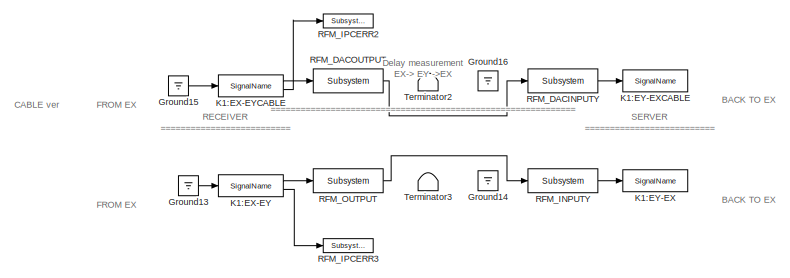
[diagram: root canvas - part 1/2, top center region]
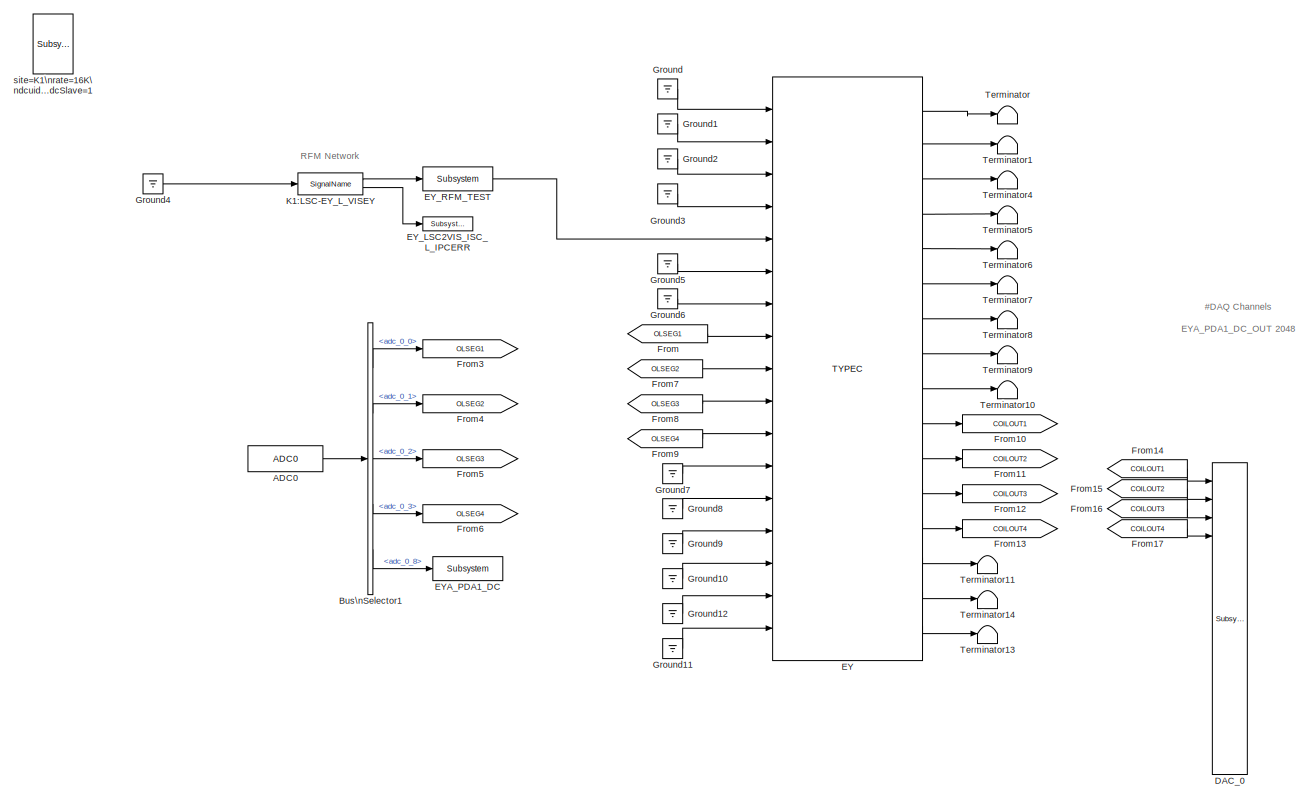
[diagram: root canvas - part 2/2, full width, middle band]
MODEL k1visey
KIND model
BLOCK [Reference] ADC0  REF=cdsAdcx0/ADC0
  AttributesFormatString = %<Description>\\n%<Tag>
  Description = type-GSC_16AI64SSA\ncard_num=0
  Ports = [0, 1]
  SID = 51
  SourceBlock = cdsAdcx0/ADC0
  SourceType = SubSystem
  Tag = cdsAdc
BLOCK [BusSelector] Bus\nSelector1
  AttributesFormatString = %<Description>
  Description = ADC Selector
  OutputSignals = adc_0_0,adc_0_1,adc_0_2,adc_0_3,adc_0_8
  Ports = [1, 5]
  SID = 52
BLOCK [Reference] DAC_0  REF=dac/Subsystem  (lib defined in slx_40ef132df75b, slx_b7657ccccc5b, +4 more)
  AttributesFormatString = %<Description>
  Description = type=GSC_16AO16,\ncard_num=0
  Ports = [16]
  SID = 5
  SourceBlock = dac/Subsystem
  SourceType = SubSystem
BLOCK [Reference] EY  REF=TYPEC_MASTER/TYPEC
  AttributesFormatString = %<Description>
  Description = TYPEC MASTER
  Ports = [17, 16]
  SID = 19
  SourceBlock = TYPEC_MASTER/TYPEC
  SourceType = SubSystem
BLOCK [Reference] EYA_PDA1_DC  REF=cdsFilt/Subsystem
  AttributesFormatString = %<Tag>
  Description = Purpose:                                                                                                                                                                                                                                  \nStandard CDS IIR filter module.                                                                                                                                     ...<+1302ch>  <repeated x6 — deduplicated; at blocks: EYA_PDA1_DC, EY_RFM_TEST, RFM_DACINPUTY, RFM_DACOUTPUT, RFM_INPUTY, RFM_OUTPUT>
  Ports = [1, 1]
  SID = 53
  SourceBlock = cdsFilt/Subsystem
  SourceType = SubSystem
  Tag = cdsFilt
BLOCK [Reference] EY_LSC2VIS_ISC_L_IPCERR  REF=cdsEpicsOut/Subsystem
  AttributesFormatString = %<Tag>
  Description = Purpose:                                          \nOutput a FE signal to an EPICS channel.           \n                                                  \nOperation:                                        \nTakes input value and passes it to EPICS record.  \n                                                  \nUsage:                                            \nName the part with the desired EPICS...<+14ch>  <repeated x3 — deduplicated; at blocks: EY_LSC2VIS_ISC_L_IPCERR, RFM_IPCERR2, RFM_IPCERR3>
  Ports = [1, 1]
  SID = 44
  SourceBlock = cdsEpicsOut/Subsystem
  SourceType = SubSystem
  Tag = cdsEpicsOutput
BLOCK [Reference] EY_RFM_TEST  REF=cdsFilt/Subsystem
  AttributesFormatString = %<Tag>
  Ports = [1, 1]
  SID = 55
  SourceBlock = cdsFilt/Subsystem
  SourceType = SubSystem
  Tag = cdsFilt
BLOCK [From] From
  GotoTag = OLSEG1
  SID = 67
BLOCK [Goto] From10
  GotoTag = COILOUT1
  SID = 71
BLOCK [Goto] From11
  GotoTag = COILOUT2
  SID = 72
BLOCK [Goto] From12
  GotoTag = COILOUT3
  SID = 73
BLOCK [Goto] From13
  GotoTag = COILOUT4
  SID = 74
BLOCK [From] From14
  GotoTag = COILOUT1
  SID = 75
BLOCK [From] From15
  GotoTag = COILOUT2
  SID = 76
BLOCK [From] From16
  GotoTag = COILOUT3
  SID = 77
BLOCK [From] From17
  GotoTag = COILOUT4
  SID = 78
BLOCK [Goto] From3
  GotoTag = OLSEG1
  SID = 63
BLOCK [Goto] From4
  GotoTag = OLSEG2
  SID = 64
BLOCK [Goto] From5
  GotoTag = OLSEG3
  SID = 65
BLOCK [Goto] From6
  GotoTag = OLSEG4
  SID = 66
BLOCK [From] From7
  GotoTag = OLSEG2
  SID = 68
BLOCK [From] From8
  GotoTag = OLSEG3
  SID = 69
BLOCK [From] From9
  GotoTag = OLSEG4
  SID = 70
BLOCK [Ground] Ground
  SID = 20
BLOCK [Ground] Ground1
  SID = 21
BLOCK [Ground] Ground10
  SID = 22
BLOCK [Ground] Ground11
  SID = 23
BLOCK [Ground] Ground12
  SID = 24
BLOCK [Ground] Ground13
  SID = 81
BLOCK [Ground] Ground14
  SID = 90
BLOCK [Ground] Ground15
  SID = 94
BLOCK [Ground] Ground16
  SID = 95
BLOCK [Ground] Ground2
  SID = 25
BLOCK [Ground] Ground3
  SID = 26
BLOCK [Ground] Ground4
  SID = 45
BLOCK [Ground] Ground5
  SID = 27
BLOCK [Ground] Ground6
  SID = 28
BLOCK [Ground] Ground7
  SID = 29
BLOCK [Ground] Ground8
  SID = 30
BLOCK [Ground] Ground9
  SID = 31
BLOCK [Reference] K1:EX-EY  REF=cdsIPCx/SignalName
  AttributesFormatString = %<Description>\\n%<Tag>
  Description = card=0
  Ports = [1, 2]
  SID = 82
  SourceBlock = cdsIPCx/SignalName
  SourceType = SubSystem
  Tag = cdsIPCx_RFM
BLOCK [Reference] K1:EX-EYCABLE  REF=cdsIPCx/SignalName
  AttributesFormatString = %<Description>\\n%<Tag>
  Description = card=0
  Ports = [1, 2]
  SID = 96
  SourceBlock = cdsIPCx/SignalName
  SourceType = SubSystem
  Tag = cdsIPCx_RFM
BLOCK [Reference] K1:EY-EX  REF=cdsIPCx/SignalName
  AttributesFormatString = %<Description>\\n%<Tag>
  Description = card=0
  Ports = [1, 2]
  SID = 91
  SourceBlock = cdsIPCx/SignalName
  SourceType = SubSystem
  Tag = cdsIPCx_RFM
BLOCK [Reference] K1:EY-EXCABLE  REF=cdsIPCx/SignalName
  AttributesFormatString = %<Description>\\n%<Tag>
  Description = card=0
  Ports = [1, 2]
  SID = 97
  SourceBlock = cdsIPCx/SignalName
  SourceType = SubSystem
  Tag = cdsIPCx_RFM
BLOCK [Reference] K1:LSC-EY_L_VISEY  REF=cdsIPCx/SignalName
  AttributesFormatString = %<Description>\\n%<Tag>
  Description = card=0
  Ports = [1, 2]
  SID = 46
  SourceBlock = cdsIPCx/SignalName
  SourceType = SubSystem
  Tag = cdsIPCx_RFM
BLOCK [Reference] RFM_DACINPUTY  REF=cdsFilt/Subsystem
  AttributesFormatString = %<Tag>
  Ports = [1, 1]
  SID = 98
  SourceBlock = cdsFilt/Subsystem
  SourceType = SubSystem
  Tag = cdsFilt
BLOCK [Reference] RFM_DACOUTPUT  REF=cdsFilt/Subsystem
  AttributesFormatString = %<Tag>
  Ports = [1, 1]
  SID = 100
  SourceBlock = cdsFilt/Subsystem
  SourceType = SubSystem
  Tag = cdsFilt
BLOCK [Reference] RFM_INPUTY  REF=cdsFilt/Subsystem
  AttributesFormatString = %<Tag>
  Ports = [1, 1]
  SID = 92
  SourceBlock = cdsFilt/Subsystem
  SourceType = SubSystem
  Tag = cdsFilt
BLOCK [Reference] RFM_IPCERR2  REF=cdsEpicsOut/Subsystem
  AttributesFormatString = %<Tag>
  Ports = [1, 1]
  SID = 99
  SourceBlock = cdsEpicsOut/Subsystem
  SourceType = SubSystem
  Tag = cdsEpicsOutput
BLOCK [Reference] RFM_IPCERR3  REF=cdsEpicsOut/Subsystem
  AttributesFormatString = %<Tag>
  Ports = [1, 1]
  SID = 89
  SourceBlock = cdsEpicsOut/Subsystem
  SourceType = SubSystem
  Tag = cdsEpicsOutput
BLOCK [Reference] RFM_OUTPUT  REF=cdsFilt/Subsystem
  AttributesFormatString = %<Tag>
  Ports = [1, 1]
  SID = 80
  SourceBlock = cdsFilt/Subsystem
  SourceType = SubSystem
  Tag = cdsFilt
BLOCK [Terminator] Terminator
  SID = 32
BLOCK [Terminator] Terminator1
  SID = 33
BLOCK [Terminator] Terminator10
  SID = 34
BLOCK [Terminator] Terminator11
  SID = 35
BLOCK [Terminator] Terminator13
  SID = 36
BLOCK [Terminator] Terminator14
  SID = 37
BLOCK [Terminator] Terminator2
  SID = 101
BLOCK [Terminator] Terminator3
  SID = 88
BLOCK [Terminator] Terminator4
  SID = 38
BLOCK [Terminator] Terminator5
  SID = 39
BLOCK [Terminator] Terminator6
  SID = 40
BLOCK [Terminator] Terminator7
  SID = 41
BLOCK [Terminator] Terminator8
  SID = 42
BLOCK [Terminator] Terminator9
  SID = 43
BLOCK [Reference] site=K1\nrate=16K\ndcuid=106\nhost=k1ey0\nspecific_cpu=3\nadcSlave=1  REF=cdsParameters/Subsystem
  AttributesFormatString = %<Tag>
  Description = Purpose:                                                                                                                                                                                                                                \nProvide system parameters to the FE code generator to properly configure the generated EPICS names, rep rate of the FE controller, and the Data Acquisition node ID fo...<+2934ch>
  Ports = [1, 1]
  SID = 1
  SourceBlock = cdsParameters/Subsystem
  SourceType = SubSystem
  Tag = cdsParameters
ANNOTATION (root): #DAQ Channels\n\nEYA_PDA1_DC_OUT 2048
ANNOTATION (root): \n \n BACK TO EX
ANNOTATION (root): \n \n CABLE ver
ANNOTATION (root): \n \n FROM EX
ANNOTATION (root): \n \n RFM Network
ANNOTATION (root): Delay measurement \nEX-> EY ->EX\n=============================================================\n
ANNOTATION (root): RECEIVER\n==========================
ANNOTATION (root): SERVER\n==========================
LINE ADC0:1 -> Bus\nSelector1:1
LINE Bus\nSelector1:1 -> From3:1
LINE Bus\nSelector1:2 -> From4:1
LINE Bus\nSelector1:3 -> From5:1
LINE Bus\nSelector1:4 -> From6:1
LINE Bus\nSelector1:5 -> EYA_PDA1_DC:1
LINE EY:1 -> Terminator:1
LINE EY:10 -> From10:1
LINE EY:11 -> From11:1
LINE EY:12 -> From12:1
LINE EY:13 -> From13:1
LINE EY:14 -> Terminator11:1
LINE EY:15 -> Terminator14:1
LINE EY:16 -> Terminator13:1
LINE EY:2 -> Terminator1:1
LINE EY:3 -> Terminator4:1
LINE EY:4 -> Terminator5:1
LINE EY:5 -> Terminator6:1
LINE EY:6 -> Terminator7:1
LINE EY:7 -> Terminator8:1
LINE EY:8 -> Terminator9:1
LINE EY:9 -> Terminator10:1
LINE EY_RFM_TEST:1 -> EY:5
LINE From14:1 -> DAC_0:1
LINE From15:1 -> DAC_0:2
LINE From16:1 -> DAC_0:3
LINE From17:1 -> DAC_0:4
LINE From7:1 -> EY:9
LINE From8:1 -> EY:10
LINE From9:1 -> EY:11
LINE From:1 -> EY:8
LINE Ground10:1 -> EY:15
LINE Ground11:1 -> EY:17
LINE Ground12:1 -> EY:16
LINE Ground13:1 -> K1:EX-EY:1
LINE Ground15:1 -> K1:EX-EYCABLE:1
LINE Ground1:1 -> EY:2
LINE Ground2:1 -> EY:3
LINE Ground3:1 -> EY:4
LINE Ground4:1 -> K1:LSC-EY_L_VISEY:1
LINE Ground5:1 -> EY:6
LINE Ground6:1 -> EY:7
LINE Ground7:1 -> EY:12
LINE Ground8:1 -> EY:13
LINE Ground9:1 -> EY:14
LINE Ground:1 -> EY:1
LINE K1:EX-EY:1 -> RFM_OUTPUT:1
LINE K1:EX-EY:2 -> RFM_IPCERR3:1
LINE K1:EX-EYCABLE:1 -> RFM_DACOUTPUT:1
LINE K1:EX-EYCABLE:2 -> RFM_IPCERR2:1
LINE K1:LSC-EY_L_VISEY:1 -> EY_RFM_TEST:1
LINE K1:LSC-EY_L_VISEY:2 -> EY_LSC2VIS_ISC_L_IPCERR:1
LINE RFM_DACINPUTY:1 -> K1:EY-EXCABLE:1
LINE RFM_DACOUTPUT:1 -> RFM_DACINPUTY:1
LINE RFM_INPUTY:1 -> K1:EY-EX:1
LINE RFM_OUTPUT:1 -> RFM_INPUTY:1
